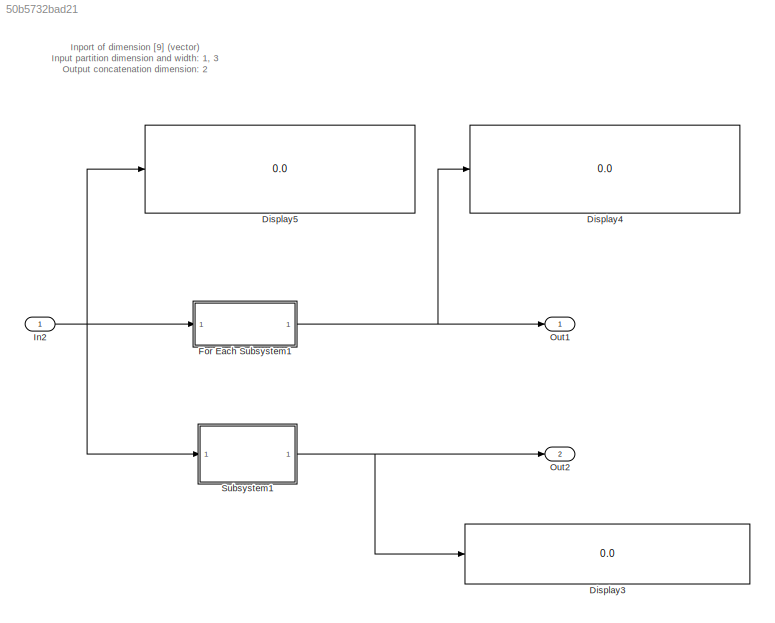
MODEL slx_50b5732bad21
KIND model
CONFIG AbsTol = auto
CONFIG EnableMultiTasking = on
CONFIG FixedStep = 0.200000
CONFIG MaxStep = auto
CONFIG MinStep = auto
CONFIG RelTol = 1e-3
CONFIG SampleTimeConstraint = Unconstrained
CONFIG Solver = FixedStepDiscrete
CONFIG SolverName = FixedStepDiscrete
CONFIG StartTime = 0.0
CONFIG StopTime = 10.0
BLOCK [Display] Display3
  Decimation = 1
  Ports = [1]
BLOCK [Display] Display4
  Decimation = 1
  Ports = [1]
BLOCK [Display] Display5
  Decimation = 1
  Ports = [1]
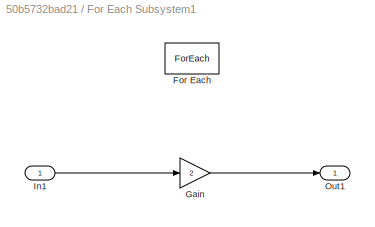
BLOCK [SubSystem] For Each Subsystem1
  Ports = [1, 1]
  RequestExecContextInheritance = off
  Variant = off
BLOCK [ForEach] For Each Subsystem1/For Each
  DisableCoverage = on
  IndexMode = One-based
  Ports = []
BLOCK [Gain] For Each Subsystem1/Gain
  Gain = 2
  OutDataTypeStr = Inherit: Inherit via internal rule
  ParamDataTypeStr = Inherit: Inherit via internal rule
  SaturateOnIntegerOverflow = off
BLOCK [Inport] For Each Subsystem1/In1
  IconDisplay = Port number
  Partition = on
  PartitionDimension = 1
  PartitionOffset = 0
  PartitionWidth = 3
BLOCK [Outport] For Each Subsystem1/Out1
  ConcatenationDimension = 2
  IconDisplay = Port number
BLOCK [Inport] In2
  IconDisplay = Port number
  PortDimensions = 9
BLOCK [Outport] Out1
  IconDisplay = Port number
BLOCK [Outport] Out2
  IconDisplay = Port number
  Port = 2
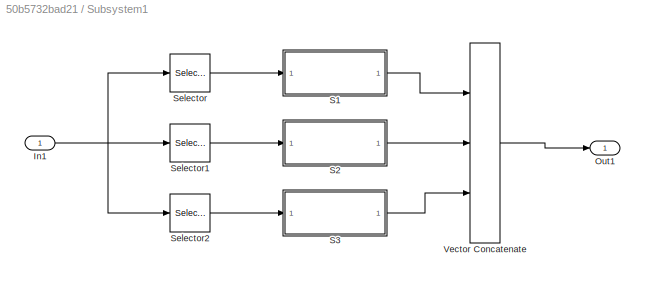
BLOCK [SubSystem] Subsystem1
  Ports = [1, 1]
  RequestExecContextInheritance = off
  Variant = off
BLOCK [Inport] Subsystem1/In1
  IconDisplay = Port number
BLOCK [Outport] Subsystem1/Out1
  IconDisplay = Port number
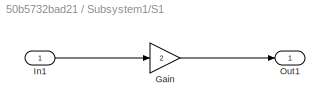
BLOCK [SubSystem] Subsystem1/S1
  Ports = [1, 1]
  RequestExecContextInheritance = off
  Variant = off
BLOCK [Gain] Subsystem1/S1/Gain
  Gain = 2
  OutDataTypeStr = Inherit: Inherit via internal rule
  ParamDataTypeStr = Inherit: Inherit via internal rule
  SaturateOnIntegerOverflow = off
BLOCK [Inport] Subsystem1/S1/In1
  IconDisplay = Port number
BLOCK [Outport] Subsystem1/S1/Out1
  IconDisplay = Port number
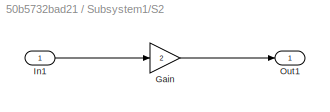
BLOCK [SubSystem] Subsystem1/S2
  Ports = [1, 1]
  RequestExecContextInheritance = off
  Variant = off
BLOCK [Gain] Subsystem1/S2/Gain
  Gain = 2
  OutDataTypeStr = Inherit: Inherit via internal rule
  ParamDataTypeStr = Inherit: Inherit via internal rule
  SaturateOnIntegerOverflow = off
BLOCK [Inport] Subsystem1/S2/In1
  IconDisplay = Port number
BLOCK [Outport] Subsystem1/S2/Out1
  IconDisplay = Port number
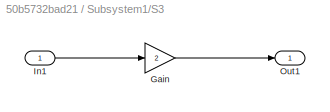
BLOCK [SubSystem] Subsystem1/S3
  Ports = [1, 1]
  RequestExecContextInheritance = off
  Variant = off
BLOCK [Gain] Subsystem1/S3/Gain
  Gain = 2
  OutDataTypeStr = Inherit: Inherit via internal rule
  ParamDataTypeStr = Inherit: Inherit via internal rule
  SaturateOnIntegerOverflow = off
BLOCK [Inport] Subsystem1/S3/In1
  IconDisplay = Port number
BLOCK [Outport] Subsystem1/S3/Out1
  IconDisplay = Port number
BLOCK [Selector] Subsystem1/Selector
  IndexOptions = Index vector (dialog),Select all
  Indices = [1 2 3],1
  InputPortWidth = 3
  NumberOfDimensions = 2
  OutputSizes = 1,1
  Ports = [1, 1]
BLOCK [Selector] Subsystem1/Selector1
  IndexOptions = Index vector (dialog),Select all
  Indices = [4 5 6],1
  InputPortWidth = 3
  NumberOfDimensions = 2
  OutputSizes = 1,1
  Ports = [1, 1]
BLOCK [Selector] Subsystem1/Selector2
  IndexOptions = Index vector (dialog),Select all
  Indices = [7 8 9],1
  InputPortWidth = 3
  NumberOfDimensions = 2
  OutputSizes = 1,1
  Ports = [1, 1]
BLOCK [Concatenate] Subsystem1/Vector Concatenate
  ConcatenateDimension = 2
  Mode = Multidimensional array
  NumInputs = 3
  Ports = [3, 1]
ANNOTATION (root): Inport of dimension [9] (vector) Input partition dimension and width: 1, 3 Output concatenation dimension: 2
LINE For Each Subsystem1/Gain:1 -> For Each Subsystem1/Out1:1
LINE For Each Subsystem1/In1:1 -> For Each Subsystem1/Gain:1
NET For Each Subsystem1:1 -> Display4:1, Out1:1
NET In2:1 -> Display5:1, For Each Subsystem1:1, Subsystem1:1
NET Subsystem1/In1:1 -> Subsystem1/Selector1:1, Subsystem1/Selector2:1, Subsystem1/Selector:1
LINE Subsystem1/S1/Gain:1 -> Subsystem1/S1/Out1:1
LINE Subsystem1/S1/In1:1 -> Subsystem1/S1/Gain:1
LINE Subsystem1/S1:1 -> Subsystem1/Vector Concatenate:1
LINE Subsystem1/S2/Gain:1 -> Subsystem1/S2/Out1:1
LINE Subsystem1/S2/In1:1 -> Subsystem1/S2/Gain:1
LINE Subsystem1/S2:1 -> Subsystem1/Vector Concatenate:2
LINE Subsystem1/S3/Gain:1 -> Subsystem1/S3/Out1:1
LINE Subsystem1/S3/In1:1 -> Subsystem1/S3/Gain:1
LINE Subsystem1/S3:1 -> Subsystem1/Vector Concatenate:3
LINE Subsystem1/Selector1:1 -> Subsystem1/S2:1
LINE Subsystem1/Selector2:1 -> Subsystem1/S3:1
LINE Subsystem1/Selector:1 -> Subsystem1/S1:1
LINE Subsystem1/Vector Concatenate:1 -> Subsystem1/Out1:1
NET Subsystem1:1 -> Display3:1, Out2:1
note: NET lines group one-source signal fan-out (src -> all destinations, sorted); 1:1 wires keep LINE
